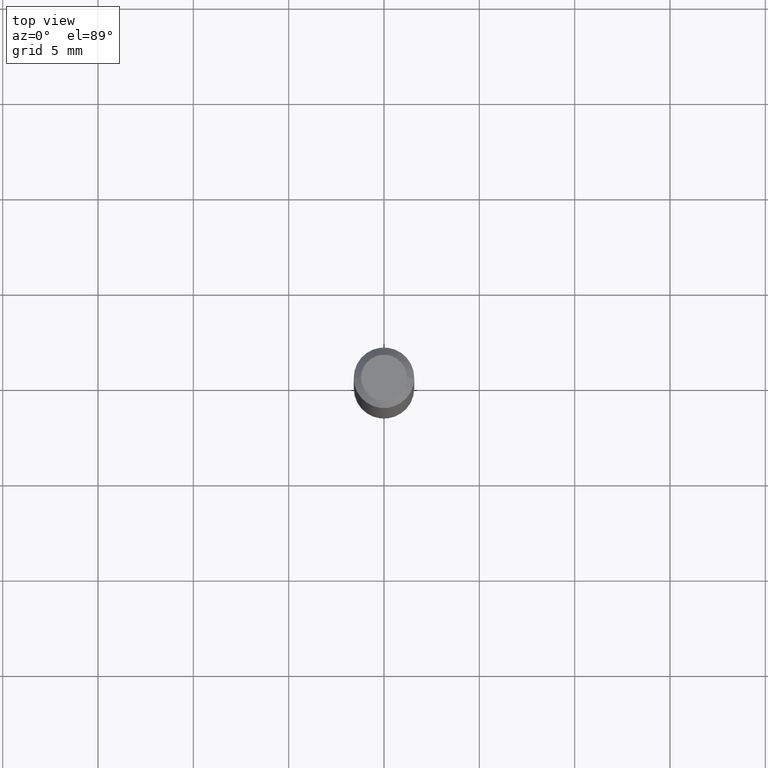
[diagram: clean part render]
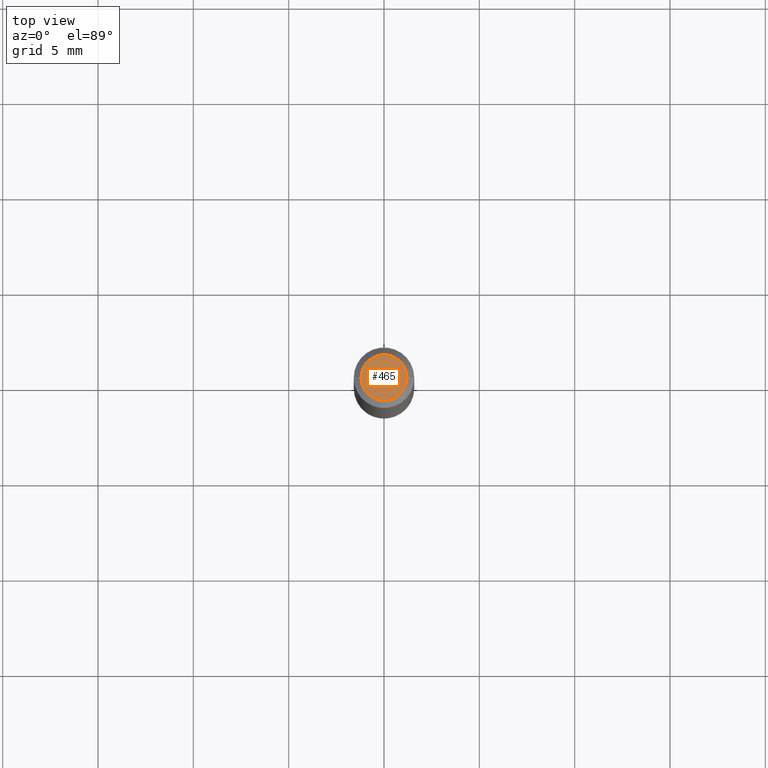
[diagram: same view with one face highlighted and labeled with its STEP entity id]
A machine part, top view. The second image highlights one B-rep face of the part: STEP entity #465.
In plain terms, the highlighted planar face has unit normal (0, -0, -1).
Its self-contained STEP definition (entity closure, byte-faithful):
#14 = FACE_OUTER_BOUND ( 'NONE', #332, .T. ) ;
#15 = DIRECTION ( 'NONE',  ( -2.445468806185136597E-29, 3.491481338843145583E-15, 1.000000000000000000 ) ) ;
#23 = AXIS2_PLACEMENT_3D ( 'NONE', #337, #15, #164 ) ;
#34 = CIRCLE ( 'NONE', #103, 0.04749999999999999362 ) ;
#44 = VERTEX_POINT ( 'NONE', #296 ) ;
#63 = CARTESIAN_POINT ( 'NONE',  ( 7.003305027062207074E-45, -9.998863510493265527E-31, -2.863788329398962481E-16 ) ) ;
#103 = AXIS2_PLACEMENT_3D ( 'NONE', #63, #212, #110 ) ;
#110 = DIRECTION ( 'NONE',  ( 1.000000000000000000, -6.982962677686267499E-15, 4.852736867747366768E-29 ) ) ;
#133 = CARTESIAN_POINT ( 'NONE',  ( 3.316907271900976096E-16, 0.04749999999999999362, -3.090347800649974958E-16 ) ) ;
#164 = DIRECTION ( 'NONE',  ( 1.000000000000000000, -6.982962677686267499E-15, 4.852736867747366768E-29 ) ) ;
#191 = ORIENTED_EDGE ( 'NONE', *, *, #396, .T. ) ;
#212 = DIRECTION ( 'NONE',  ( -2.445468806185136597E-29, 3.491481338843145583E-15, 1.000000000000000000 ) ) ;
#230 = CARTESIAN_POINT ( 'NONE',  ( 0.04749999999999999362, -4.035134999187584047E-16, -2.863788329398937336E-16 ) ) ;
#252 = VERTEX_POINT ( 'NONE', #230 ) ;
#258 = EDGE_CURVE ( 'NONE', #44, #252, #386, .T. ) ;
#296 = CARTESIAN_POINT ( 'NONE',  ( -0.04749999999999999362, 3.578768372314205575E-16, -2.863788329398987133E-16 ) ) ;
#307 = PLANE ( 'NONE',  #428 ) ;
#332 = EDGE_LOOP ( 'NONE', ( #408, #191 ) ) ;
#337 = CARTESIAN_POINT ( 'NONE',  ( 7.003305027062207074E-45, -9.998863510493265527E-31, -2.863788329398962481E-16 ) ) ;
#386 = CIRCLE ( 'NONE', #23, 0.04749999999999999362 ) ;
#396 = EDGE_CURVE ( 'NONE', #252, #44, #34, .T. ) ;
#408 = ORIENTED_EDGE ( 'NONE', *, *, #258, .T. ) ;
#412 = DIRECTION ( 'NONE',  ( -1.000000000000000000, 6.982962677686265922E-15, -4.876176775795935793E-29 ) ) ;
#428 = AXIS2_PLACEMENT_3D ( 'NONE', #133, #447, #412 ) ;
#447 = DIRECTION ( 'NONE',  ( 2.438088387897960049E-29, -3.491481338843145188E-15, -1.000000000000000000 ) ) ;
#465 = ADVANCED_FACE ( 'NONE', ( #14 ), #307, .F. ) ;